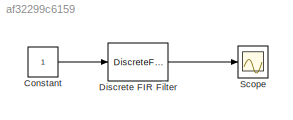
MODEL slx_af32299c6159
KIND model
CONFIG AbsTol = auto
CONFIG FixedStep = auto
CONFIG MaxStep = auto
CONFIG MinStep = auto
CONFIG RelTol = 1e-3
CONFIG SampleTimeConstraint = Unconstrained
CONFIG Solver = ode45
CONFIG SolverMode = Auto
CONFIG SolverName = ode45
CONFIG StartTime = 0.0
CONFIG StopTime = 1
BLOCK [Constant] Constant
  SampleTime = 0.02
BLOCK [DiscreteFir] Discrete FIR Filter
  Coefficients = [-0.0905 0 0.12732 0 -0.21221 0 0.63662 1 0.63662 0 -0.21221 0 0.12732 0 -0.0905]
  Ports = [1, 1]
BLOCK [Scope] Scope
  Floating = off
  NumInputPorts = 1
  Ports = [1]
LINE Constant:1 -> Discrete FIR Filter:1
LINE Discrete FIR Filter:1 -> Scope:1
